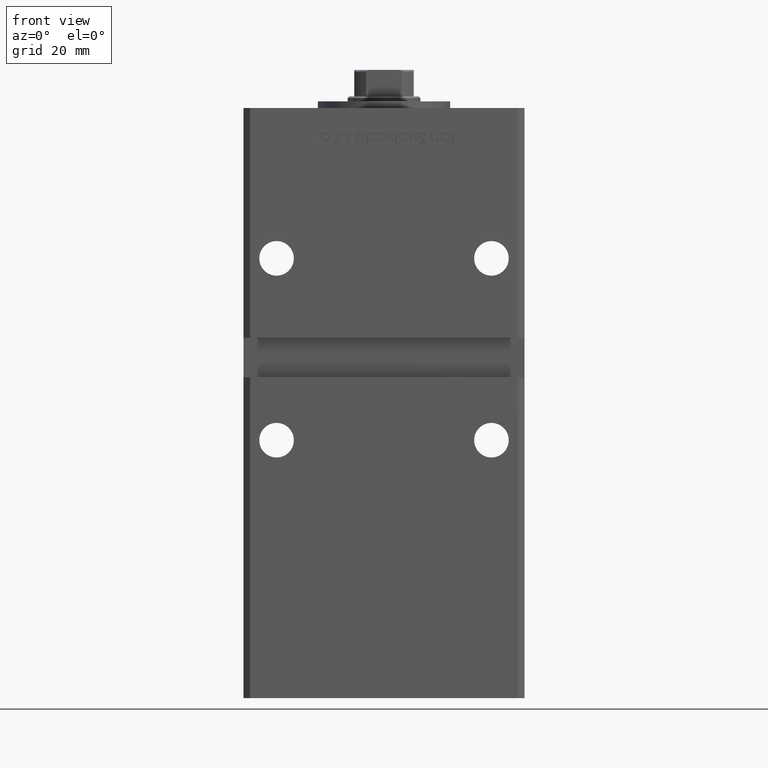
[diagram: clean part render]
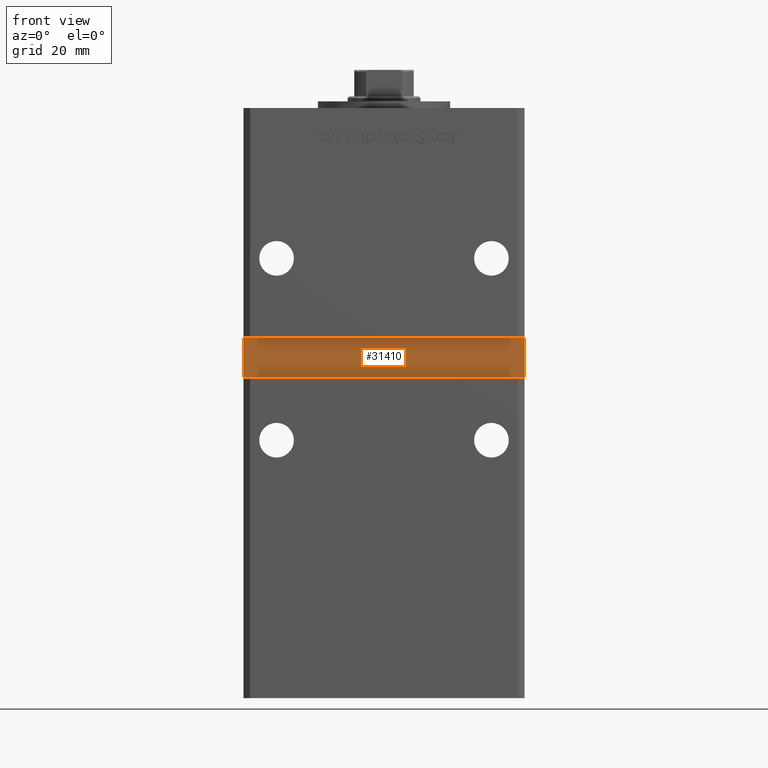
[diagram: same view with one face highlighted and labeled with its STEP entity id]
A machine part, front view. The second image highlights one B-rep face of the part: STEP entity #31410.
In plain terms, the highlighted planar face has unit normal (0, -1, 0).
Its self-contained STEP definition (entity closure, byte-faithful):
#437 = VERTEX_POINT ( 'NONE', #40225 ) ;
#2679 = CARTESIAN_POINT ( 'NONE',  ( -42.49999999999998579, -32.50000000000000711, 82.00000000000000000 ) ) ;
#6170 = VERTEX_POINT ( 'NONE', #51189 ) ;
#6353 = VERTEX_POINT ( 'NONE', #21313 ) ;
#6708 = LINE ( 'NONE', #10500, #40497 ) ;
#6724 = PLANE ( 'NONE',  #32536 ) ;
#7493 = LINE ( 'NONE', #2679, #36328 ) ;
#7902 = LINE ( 'NONE', #15450, #20589 ) ;
#8024 = ORIENTED_EDGE ( 'NONE', *, *, #46461, .T. ) ;
#10500 = CARTESIAN_POINT ( 'NONE',  ( 42.49999999999998579, -32.50000000000000711, 94.00000000000000000 ) ) ;
#15136 = LINE ( 'NONE', #27504, #18258 ) ;
#15450 = CARTESIAN_POINT ( 'NONE',  ( -42.49999999999998579, -32.50000000000000711, 94.00000000000000000 ) ) ;
#15687 = EDGE_CURVE ( 'NONE', #34102, #6170, #7902, .T. ) ;
#18258 = VECTOR ( 'NONE', #18918, 1000.000000000000000 ) ;
#18918 = DIRECTION ( 'NONE',  ( -1.000000000000000000, -0.000000000000000000, -0.000000000000000000 ) ) ;
#19372 = CARTESIAN_POINT ( 'NONE',  ( 0.000000000000000000, -32.50000000000000711, 0.000000000000000000 ) ) ;
#20589 = VECTOR ( 'NONE', #23519, 1000.000000000000000 ) ;
#21313 = CARTESIAN_POINT ( 'NONE',  ( 42.49999999999998579, -32.50000000000000000, 82.00000000000000000 ) ) ;
#21780 = ORIENTED_EDGE ( 'NONE', *, *, #44507, .T. ) ;
#22616 = DIRECTION ( 'NONE',  ( 0.000000000000000000, -0.000000000000000000, -1.000000000000000000 ) ) ;
#23148 = DIRECTION ( 'NONE',  ( 0.000000000000000000, -1.000000000000000000, 0.000000000000000000 ) ) ;
#23519 = DIRECTION ( 'NONE',  ( -5.782411586589358625E-16, 0.000000000000000000, -1.000000000000000000 ) ) ;
#23862 = ORIENTED_EDGE ( 'NONE', *, *, #15687, .T. ) ;
#26378 = FACE_OUTER_BOUND ( 'NONE', #33539, .T. ) ;
#27166 = DIRECTION ( 'NONE',  ( 1.000000000000000000, 0.000000000000000000, 0.000000000000000000 ) ) ;
#27504 = CARTESIAN_POINT ( 'NONE',  ( -42.49999999999998579, -32.50000000000000711, 94.00000000000000000 ) ) ;
#31410 = ADVANCED_FACE ( 'NONE', ( #26378 ), #6724, .T. ) ;
#31972 = DIRECTION ( 'NONE',  ( -0.000000000000000000, -0.000000000000000000, 1.000000000000000000 ) ) ;
#32536 = AXIS2_PLACEMENT_3D ( 'NONE', #19372, #23148, #22616 ) ;
#33325 = ORIENTED_EDGE ( 'NONE', *, *, #47576, .T. ) ;
#33539 = EDGE_LOOP ( 'NONE', ( #21780, #8024, #23862, #33325 ) ) ;
#34102 = VERTEX_POINT ( 'NONE', #40505 ) ;
#36328 = VECTOR ( 'NONE', #27166, 1000.000000000000000 ) ;
#40225 = CARTESIAN_POINT ( 'NONE',  ( 42.49999999999998579, -32.50000000000000711, 94.00000000000000000 ) ) ;
#40497 = VECTOR ( 'NONE', #31972, 1000.000000000000000 ) ;
#40505 = CARTESIAN_POINT ( 'NONE',  ( -42.49999999999998579, -32.50000000000000711, 94.00000000000000000 ) ) ;
#44507 = EDGE_CURVE ( 'NONE', #6353, #437, #6708, .T. ) ;
#46461 = EDGE_CURVE ( 'NONE', #437, #34102, #15136, .T. ) ;
#47576 = EDGE_CURVE ( 'NONE', #6170, #6353, #7493, .T. ) ;
#51189 = CARTESIAN_POINT ( 'NONE',  ( -42.49999999999998579, -32.50000000000000711, 82.00000000000000000 ) ) ;